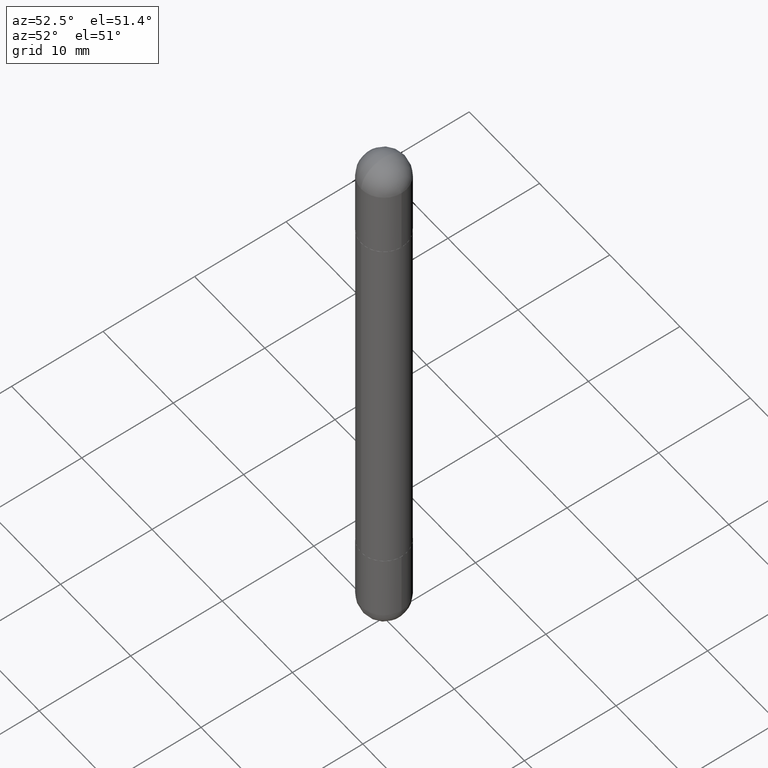
[diagram: clean part render]
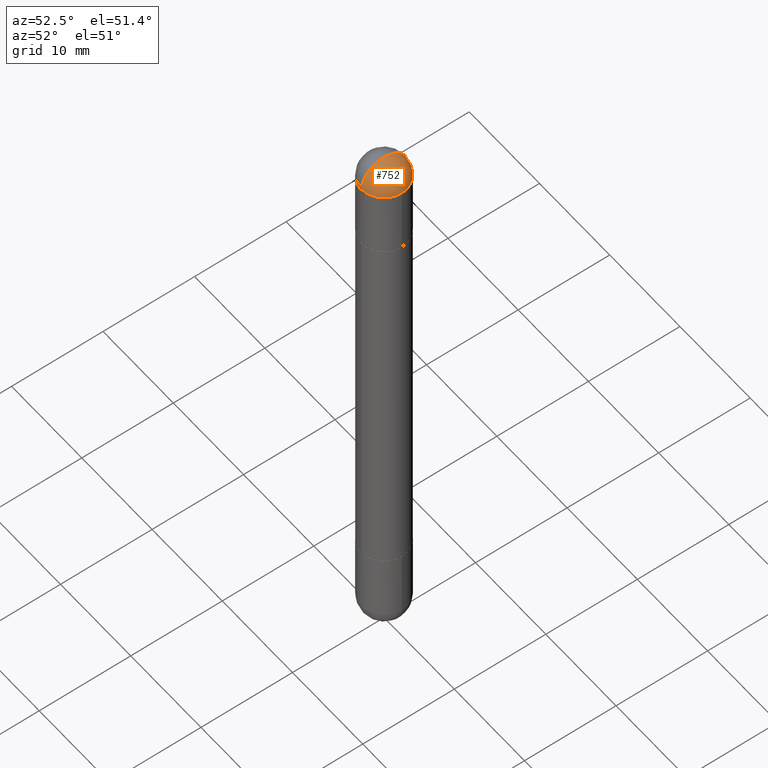
[diagram: same view with one face highlighted and labeled with its STEP entity id]
A machine part, auxiliary view. The second image highlights one B-rep face of the part: STEP entity #752.
In plain terms, the highlighted spherical surface has radius 2.5006 mm.
Its self-contained STEP definition (entity closure, byte-faithful):
#1 = DIRECTION ( 'NONE',  ( 1.000000000000000000, -6.982962677686273810E-15, 0.000000000000000000 ) ) ;
#43 = ORIENTED_EDGE ( 'NONE', *, *, #709, .T. ) ;
#53 = DIRECTION ( 'NONE',  ( 2.445468806185136597E-29, -3.491481338843145583E-15, 1.000000000000000000 ) ) ;
#96 = CARTESIAN_POINT ( 'NONE',  ( 5.493620098098182533E-29, -8.790367195063598563E-15, -0.09844999999999987095 ) ) ;
#161 = ORIENTED_EDGE ( 'NONE', *, *, #186, .F. ) ;
#166 = AXIS2_PLACEMENT_3D ( 'NONE', #656, #53, #287 ) ;
#176 = DIRECTION ( 'NONE',  ( 6.860497997771531562E-15, 1.000000000000000000, 0.000000000000000000 ) ) ;
#184 = CIRCLE ( 'NONE', #275, 0.09845000000000017626 ) ;
#186 = EDGE_CURVE ( 'NONE', #803, #547, #184, .T. ) ;
#192 = CARTESIAN_POINT ( 'NONE',  ( 5.738586058125595532E-29, -9.128075209003904434E-15, 3.073328992872296367E-16 ) ) ;
#197 = CARTESIAN_POINT ( 'NONE',  ( 0.09845000000000000973, -8.488227569895042768E-15, -0.09844999999999987095 ) ) ;
#223 = CARTESIAN_POINT ( 'NONE',  ( 6.874726756182700483E-16, 0.09844999999999154427, -0.09844999999999953788 ) ) ;
#244 = DIRECTION ( 'NONE',  ( 1.000000000000000000, -6.982962677686265922E-15, -4.883557194083112901E-29 ) ) ;
#265 = SPHERICAL_SURFACE ( 'NONE', #378, 0.09845000000000017626 ) ;
#275 = AXIS2_PLACEMENT_3D ( 'NONE', #590, #595, #605 ) ;
#284 = AXIS2_PLACEMENT_3D ( 'NONE', #96, #463, #176 ) ;
#287 = DIRECTION ( 'NONE',  ( 1.000000000000000000, -6.982962677686273810E-15, 0.000000000000000000 ) ) ;
#321 = FACE_OUTER_BOUND ( 'NONE', #532, .T. ) ;
#347 = VERTEX_POINT ( 'NONE', #197 ) ;
#349 = VERTEX_POINT ( 'NONE', #687 ) ;
#378 = AXIS2_PLACEMENT_3D ( 'NONE', #620, #244, #387 ) ;
#379 = CIRCLE ( 'NONE', #284, 0.09845000000000017626 ) ;
#387 = DIRECTION ( 'NONE',  ( 6.982962677686265922E-15, 1.000000000000000000, 3.468572871589967054E-15 ) ) ;
#424 = AXIS2_PLACEMENT_3D ( 'NONE', #432, #679, #1 ) ;
#432 = CARTESIAN_POINT ( 'NONE',  ( 5.824739876012068780E-29, -8.316184826923546689E-15, -0.09844999999999987095 ) ) ;
#463 = DIRECTION ( 'NONE',  ( 1.000000000000000000, -6.860497997771530774E-15, -4.840798879624142912E-29 ) ) ;
#484 = CIRCLE ( 'NONE', #166, 0.09845000000000000973 ) ;
#513 = ORIENTED_EDGE ( 'NONE', *, *, #813, .T. ) ;
#532 = EDGE_LOOP ( 'NONE', ( #161, #43, #724, #513 ) ) ;
#547 = VERTEX_POINT ( 'NONE', #223 ) ;
#590 = CARTESIAN_POINT ( 'NONE',  ( 5.493620098098182533E-29, -8.790367195063598563E-15, -0.09844999999999987095 ) ) ;
#595 = DIRECTION ( 'NONE',  ( -1.000000000000000000, 6.982962677686265922E-15, 4.883557194083112340E-29 ) ) ;
#605 = DIRECTION ( 'NONE',  ( -6.982962677686265922E-15, -1.000000000000000000, 0.000000000000000000 ) ) ;
#620 = CARTESIAN_POINT ( 'NONE',  ( 5.493620098098182533E-29, -8.790367195063598563E-15, -0.09844999999999987095 ) ) ;
#641 = EDGE_CURVE ( 'NONE', #349, #347, #484, .T. ) ;
#656 = CARTESIAN_POINT ( 'NONE',  ( 5.824739876012068780E-29, -8.316184826923546689E-15, -0.09844999999999987095 ) ) ;
#679 = DIRECTION ( 'NONE',  ( 2.445468806185136597E-29, -3.491481338843145583E-15, 1.000000000000000000 ) ) ;
#687 = CARTESIAN_POINT ( 'NONE',  ( -6.754160278805513950E-16, -0.09845000000000865559, -0.09845000000000021789 ) ) ;
#709 = EDGE_CURVE ( 'NONE', #803, #349, #379, .T. ) ;
#724 = ORIENTED_EDGE ( 'NONE', *, *, #641, .T. ) ;
#752 = ADVANCED_FACE ( 'NONE', ( #321 ), #265, .T. ) ;
#770 = CIRCLE ( 'NONE', #424, 0.09845000000000000973 ) ;
#803 = VERTEX_POINT ( 'NONE', #192 ) ;
#813 = EDGE_CURVE ( 'NONE', #347, #547, #770, .T. ) ;